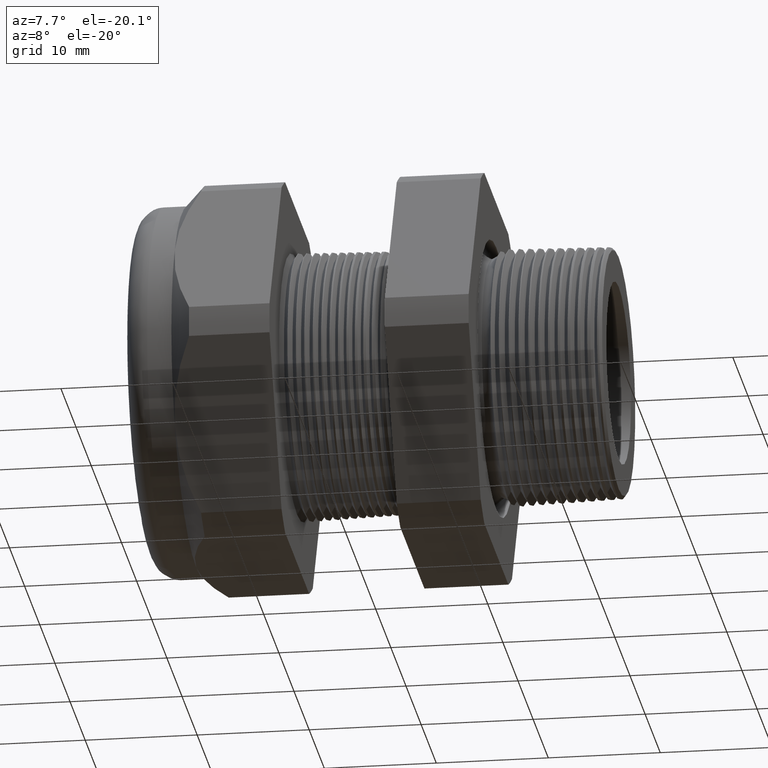
[diagram: clean part render]
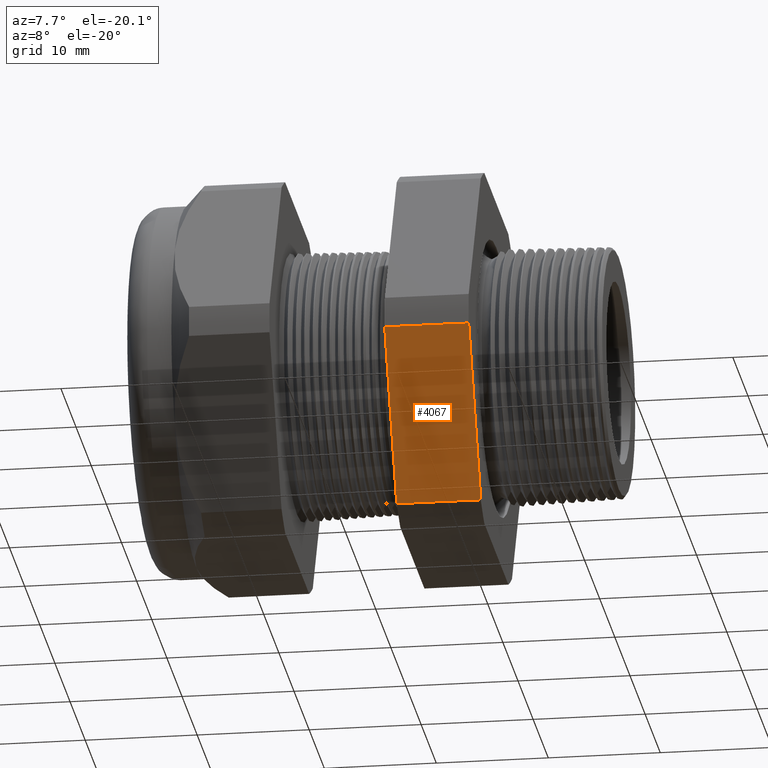
[diagram: same view with one face highlighted and labeled with its STEP entity id]
A machine part, auxiliary view. The second image highlights one B-rep face of the part: STEP entity #4067.
In plain terms, the highlighted planar face has unit normal (0, -0.866, -0.5).
Its self-contained STEP definition (entity closure, byte-faithful):
#3298 = DIRECTION ( 'NONE',  ( 0.0000000000000000000, -0.5000000000000001100, 0.8660254037844386000 ) ) ;
#3299 = VECTOR ( 'NONE', #3298, 39.37007874015748100 ) ;
#3300 = CARTESIAN_POINT ( 'NONE',  ( -0.6052755905511809600, -0.2379165124598852700, -0.8879165124598854500 ) ) ;
#3301 = LINE ( 'NONE', #3300, #3299 ) ;
#3306 = CARTESIAN_POINT ( 'NONE',  ( -0.6052755905511810800, -0.4063420493440881300, -0.5961949252843793400 ) ) ;
#3307 = CARTESIAN_POINT ( 'NONE',  ( -0.6052755905511810800, -0.7194909755756819800, -0.05380507471562082100 ) ) ;
#3341 = DIRECTION ( 'NONE',  ( -1.000000000000000000, 0.0000000000000000000, 0.0000000000000000000 ) ) ;
#3342 = VECTOR ( 'NONE', #3341, 39.37007874015748100 ) ;
#3343 = CARTESIAN_POINT ( 'NONE',  ( 0.1200000000000000900, -0.7194909755756819800, -0.05380507471562082100 ) ) ;
#3344 = LINE ( 'NONE', #3343, #3342 ) ;
#3345 = DIRECTION ( 'NONE',  ( 0.0000000000000000000, 0.5000000000000001100, -0.8660254037844386000 ) ) ;
#3346 = DIRECTION ( 'NONE',  ( 0.0000000000000000000, -0.8660254037844386000, -0.5000000000000001100 ) ) ;
#3347 = CARTESIAN_POINT ( 'NONE',  ( 0.1200000000000000900, -0.4063420493440883000, -0.5961949252843793400 ) ) ;
#3348 = AXIS2_PLACEMENT_3D ( 'NONE', #3347, #3346, #3345 ) ;
#3349 = PLANE ( 'NONE',  #3348 ) ;
#3350 = FACE_OUTER_BOUND ( 'NONE', #4081, .T. ) ;
#3366 = DIRECTION ( 'NONE',  ( -1.000000000000000000, 0.0000000000000000000, 0.0000000000000000000 ) ) ;
#3367 = VECTOR ( 'NONE', #3366, 39.37007874015748100 ) ;
#3368 = CARTESIAN_POINT ( 'NONE',  ( 0.1200000000000000900, -0.4063420493440881300, -0.5961949252843793400 ) ) ;
#3372 = LINE ( 'NONE', #3368, #3367 ) ;
#4051 = VERTEX_POINT ( 'NONE', #3307 ) ;
#4054 = VERTEX_POINT ( 'NONE', #3306 ) ;
#4059 = EDGE_CURVE ( 'NONE', #4054, #4051, #3301, .T. ) ;
#4067 = ADVANCED_FACE ( 'NONE', ( #3350 ), #3349, .T. ) ;
#4068 = EDGE_CURVE ( 'NONE', #5798, #4051, #3344, .T. ) ;
#4081 = EDGE_LOOP ( 'NONE', ( #4091, #4097, #4090, #4096 ) ) ;
#4090 = ORIENTED_EDGE ( 'NONE', *, *, #4095, .F. ) ;
#4091 = ORIENTED_EDGE ( 'NONE', *, *, #4068, .T. ) ;
#4095 = EDGE_CURVE ( 'NONE', #5789, #4054, #3372, .T. ) ;
#4096 = ORIENTED_EDGE ( 'NONE', *, *, #5799, .F. ) ;
#4097 = ORIENTED_EDGE ( 'NONE', *, *, #4059, .F. ) ;
#5212 = DIRECTION ( 'NONE',  ( 0.0000000000000000000, 0.5000000000000001100, -0.8660254037844386000 ) ) ;
#5213 = VECTOR ( 'NONE', #5212, 39.37007874015748100 ) ;
#5214 = CARTESIAN_POINT ( 'NONE',  ( -0.3100000000000000000, -0.2379165124598852700, -0.8879165124598854500 ) ) ;
#5215 = LINE ( 'NONE', #5214, #5213 ) ;
#5216 = CARTESIAN_POINT ( 'NONE',  ( -0.3100000000000000000, -0.7194909755756819800, -0.05380507471562082100 ) ) ;
#5227 = CARTESIAN_POINT ( 'NONE',  ( -0.3100000000000000000, -0.4063420493440881300, -0.5961949252843793400 ) ) ;
#5789 = VERTEX_POINT ( 'NONE', #5227 ) ;
#5798 = VERTEX_POINT ( 'NONE', #5216 ) ;
#5799 = EDGE_CURVE ( 'NONE', #5798, #5789, #5215, .T. ) ;